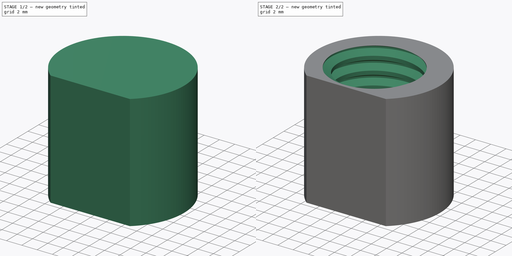
[diagram: build sequence overview — one tinted view per stage of 2, left to right]
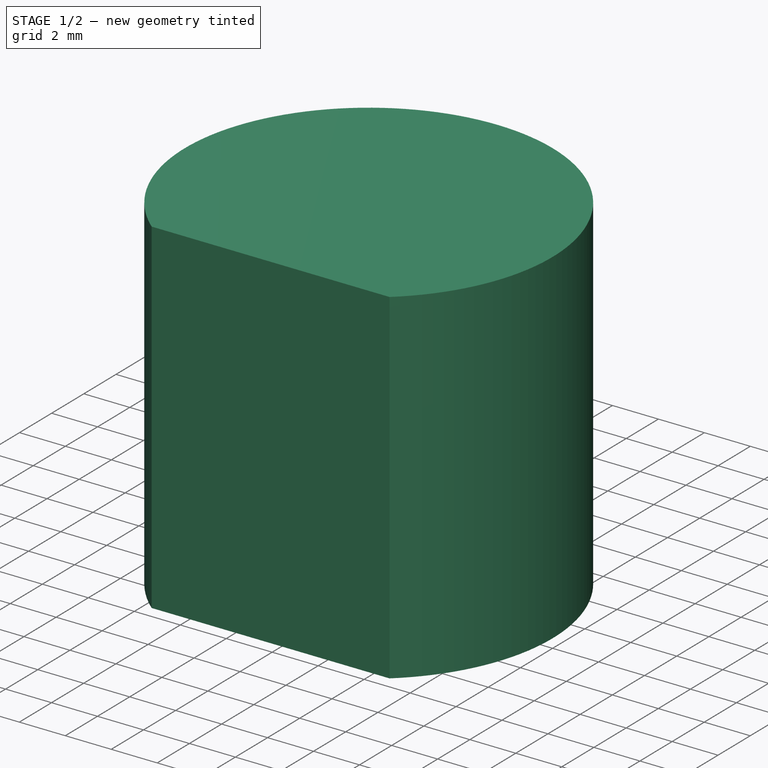
[diagram: stage 1 of 2 — iso view after this stage's code; geometry added in this stage tinted green]
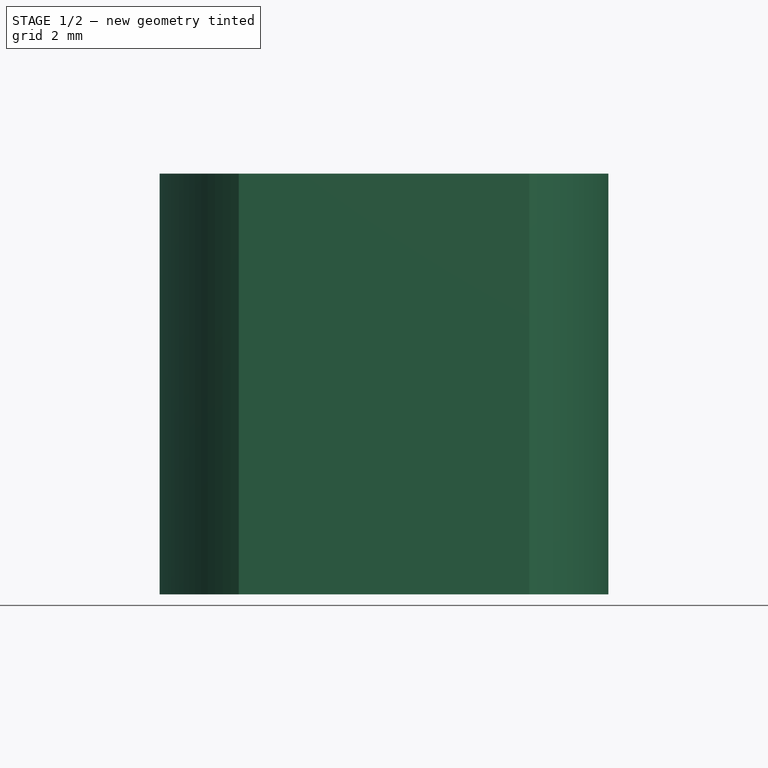
[diagram: stage 1 of 2 — front view after this stage's code; geometry added in this stage tinted green]
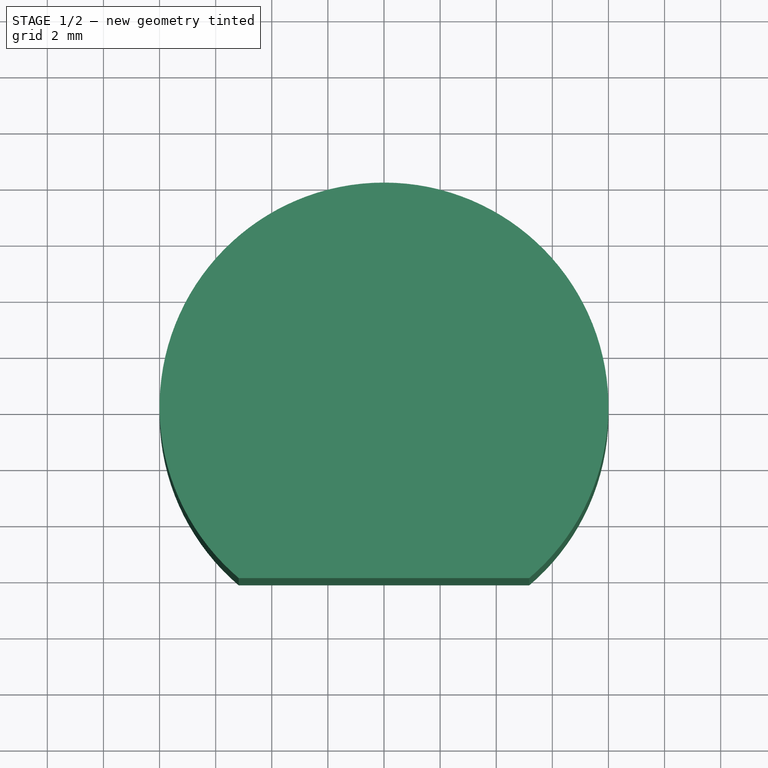
[diagram: stage 1 of 2 — top view after this stage's code; geometry added in this stage tinted green]
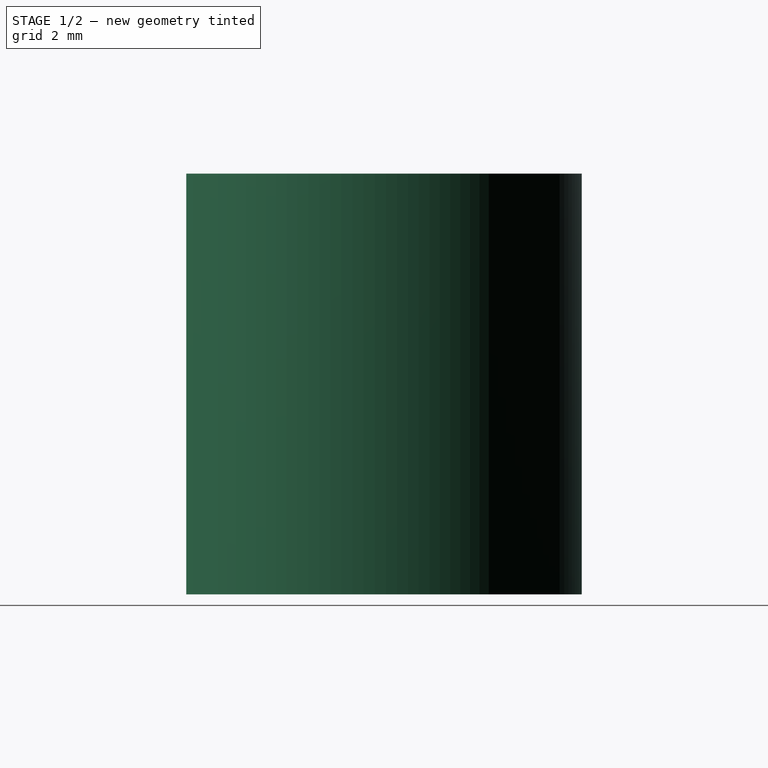
[diagram: stage 1 of 2 — right view after this stage's code; geometry added in this stage tinted green]
FCSTD DOCUMENT  (FreeCAD 0.20R29410 (Git))
Label: cutting_roll_filler
License: All rights reserved
LicenseURL: http://en.wikipedia.org/wiki/All_rights_reserved
objects: Sketcher::SketchObject×2, PartDesign::Pad×1, PartDesign::Mirrored×1, PartDesign::Hole×1, PartDesign::Body×1
note: 8 computed .brp shape members not serialized (recipe doc carries the construction recipe); baked Part::Feature solids carry a one-line shape summary decoded from their .brp

FEATURE [Sketcher::SketchObject] Sketch
  FullyConstrained = true
  MapMode = 5
  Support = -> [XY_Plane]
  sketch-geometry (3):
    g0: ArcOfCircle CenterX=0 CenterY=0 CenterZ=0 NormalX=0 NormalY=0 NormalZ=1 AngleXU=0 Radius=8 StartAngle=5.41602 EndAngle=7.85398
    g1: LineSegment StartX=0 StartY=-6.1 StartZ=0 EndX=5.17591 EndY=-6.1 EndZ=0
    g2: LineSegment StartX=2.4e-15 StartY=8 StartZ=0 EndX=0 EndY=-6.1 EndZ=0
  constraints (9):
    c: Coincident(g0,g-1)
    c: PointOnObject(g0,g-2)
    c: PointOnObject(g1,g-2)
    c: Coincident(g1,g0)
    c: Horizontal(g1)
    c: Diameter(g0) = 16
    c: Coincident(g2,g0)
    c: Coincident(g2,g1)
    c: DistanceY(g1,g0) = 14.1
FEATURE [PartDesign::Pad] Pad
  Direction = (0,0,1)
  Length = 15
  Length2 = 10
  Profile = -> Sketch
  ReferenceAxis = -> Sketch [N_Axis]
  Type = 0
FEATURE [PartDesign::Mirrored] Mirrored
  BaseFeature = -> Pad
  MirrorPlane = -> Sketch [V_Axis]
  Originals = -> [Pad]
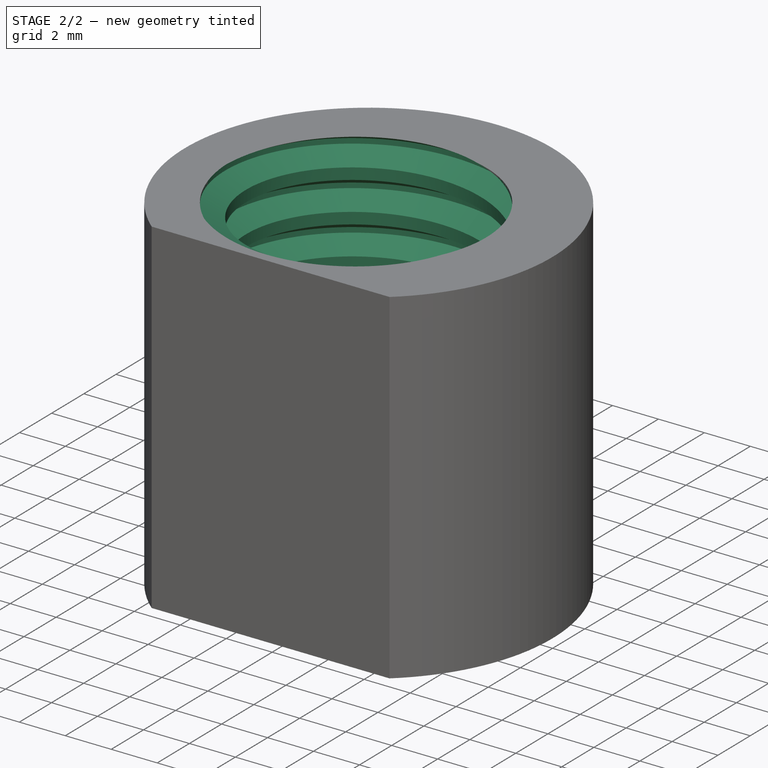
[diagram: stage 2 of 2 — iso view after this stage's code; geometry added in this stage tinted green]
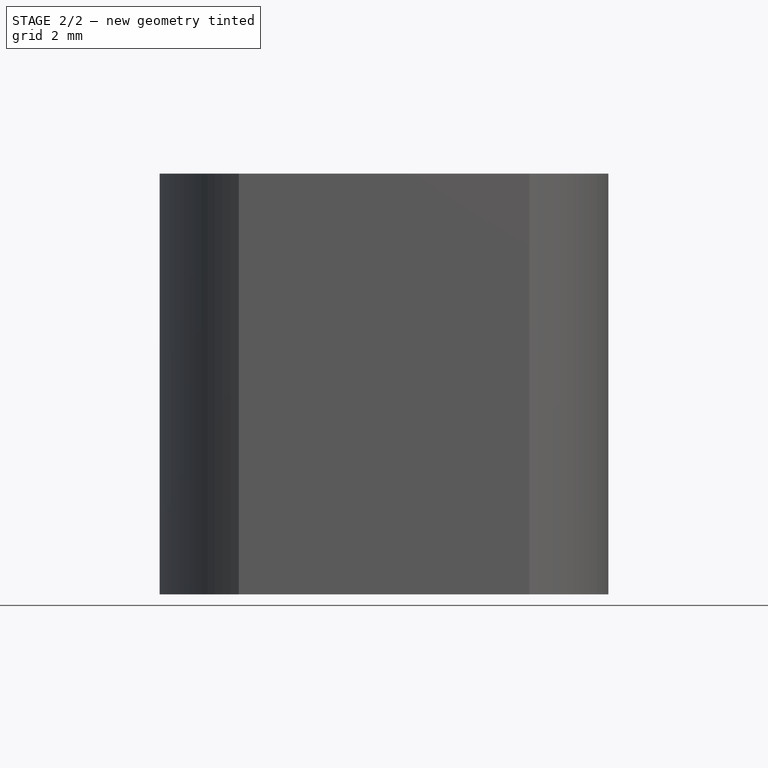
[diagram: stage 2 of 2 — front view after this stage's code; geometry added in this stage tinted green]
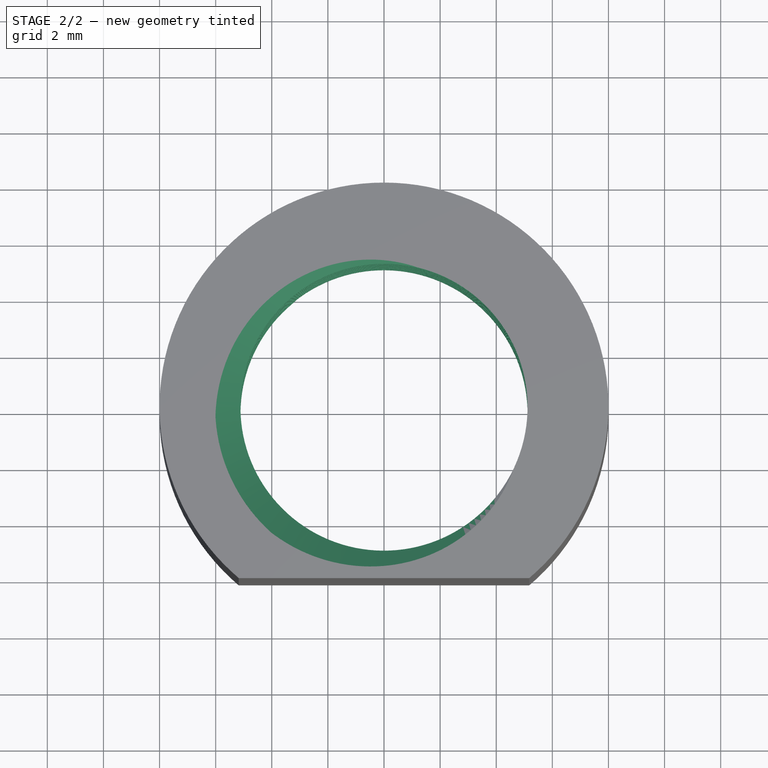
[diagram: stage 2 of 2 — top view after this stage's code; geometry added in this stage tinted green]
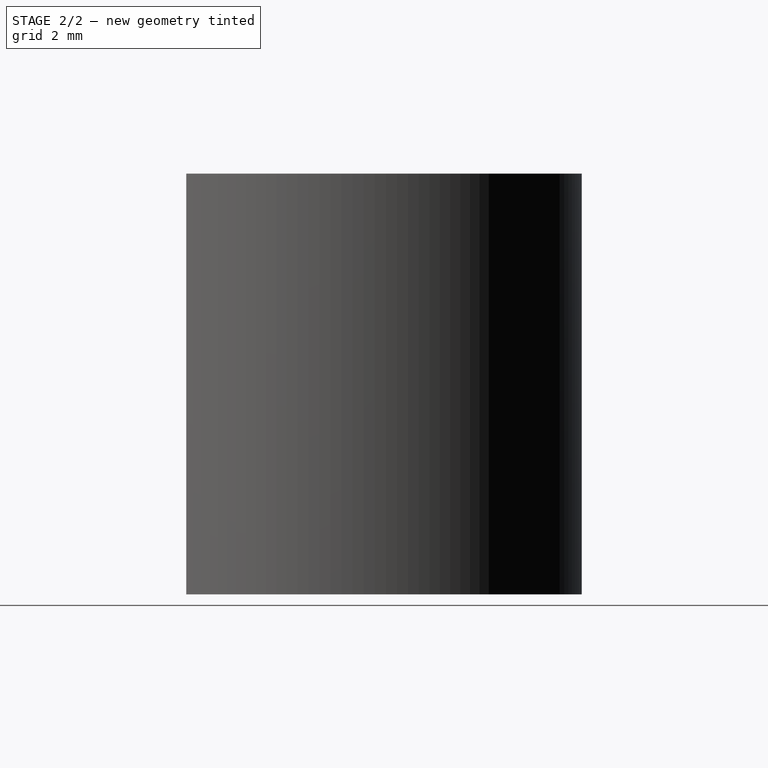
[diagram: stage 2 of 2 — right view after this stage's code; geometry added in this stage tinted green]
FEATURE [Sketcher::SketchObject] Sketch001
  FullyConstrained = true
  MapMode = 5
  Support = -> [XY_Plane]
  sketch-geometry (1):
    g0: Circle CenterX=0 CenterY=0 CenterZ=0 NormalX=0 NormalY=0 NormalZ=1 AngleXU=0 Radius=6
  constraints (2):
    c: Coincident(g0,g-1)
    c: Diameter(g0) = 12
FEATURE [PartDesign::Hole] Hole
  BaseFeature = -> Mirrored
  CustomThreadClearance = 0
  Depth = 52.6186
  DepthType = 1
  Diameter = 10.234
  DrillForDepth = false
  DrillPoint = 1
  DrillPointAngle = 118
  HoleCutCountersinkAngle = 90
  HoleCutCustomValues = false
  HoleCutDepth = 0
  HoleCutDiameter = 0
  HoleCutType = 0
  ModelThread = true
  Profile = -> Sketch001
  Reversed = true
  Tapered = false
  TaperedAngle = 90
  ThreadClass = 0
  ThreadDepth = 52.6186
  ThreadDepthType = 0
  ThreadDirection = 0
  ThreadFit = 0
  ThreadSize = 20
  ThreadType = 1
  Threaded = true
  UseCustomThreadClearance = false
FEATURE [PartDesign::Body] Body
  Group = -> [Sketch,Pad,Mirrored,Sketch001,Hole]
  Origin = -> Origin
  Tip = -> Hole
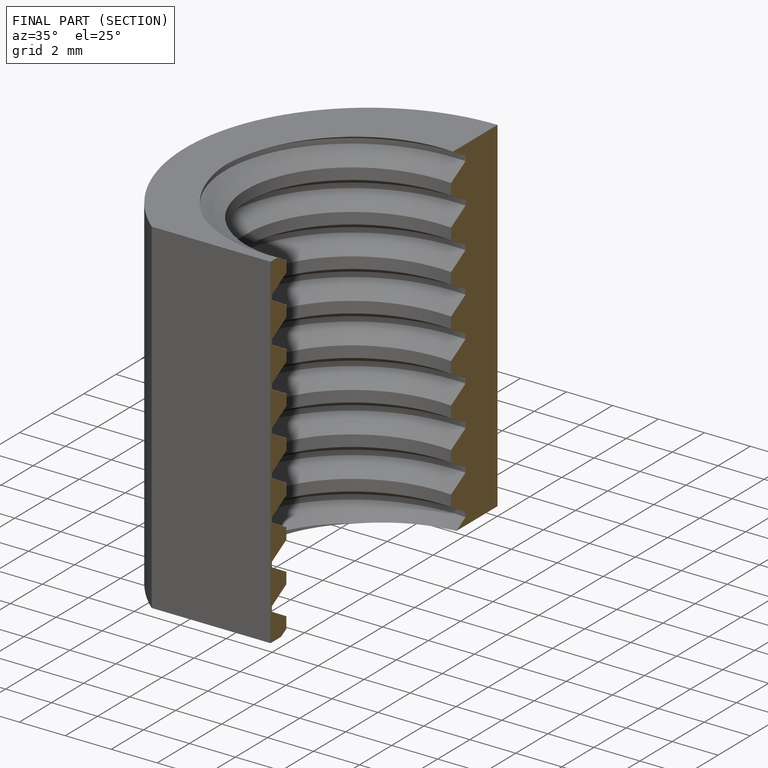
[diagram: finished part — half-section view (interior)]
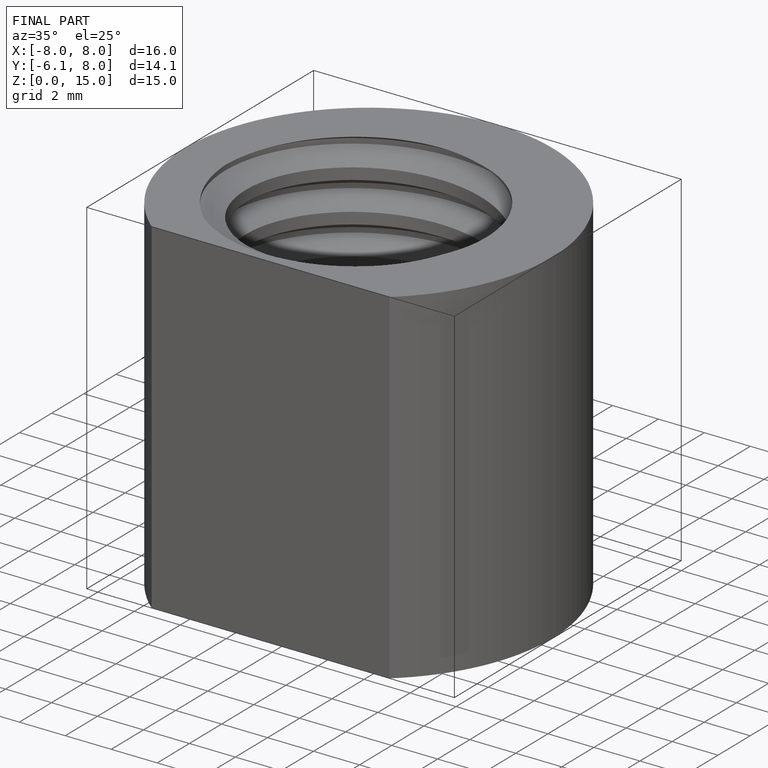
[diagram: finished part — iso view with bounding-box wireframe]
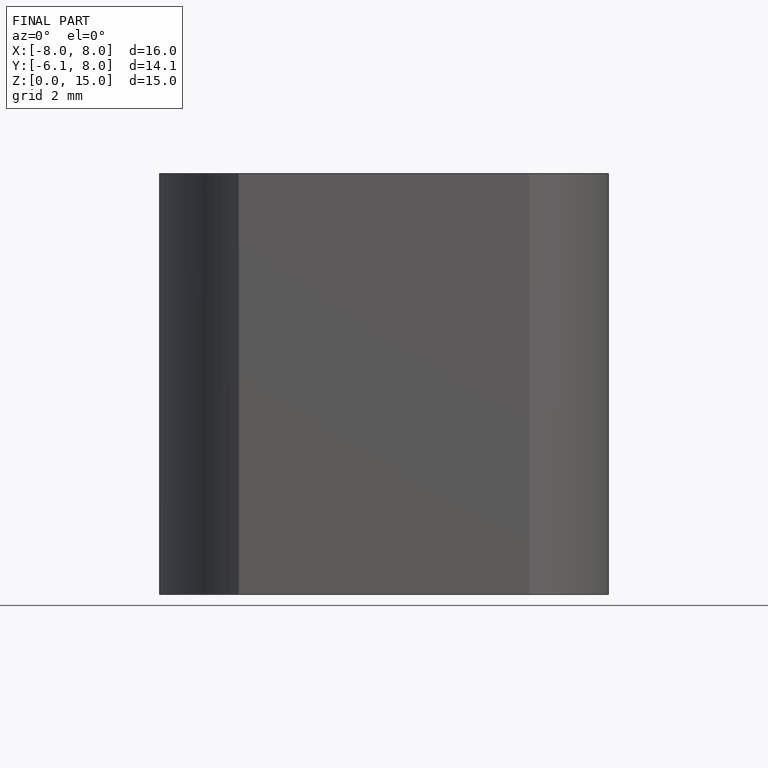
[diagram: finished part — front view with bounding-box wireframe]
